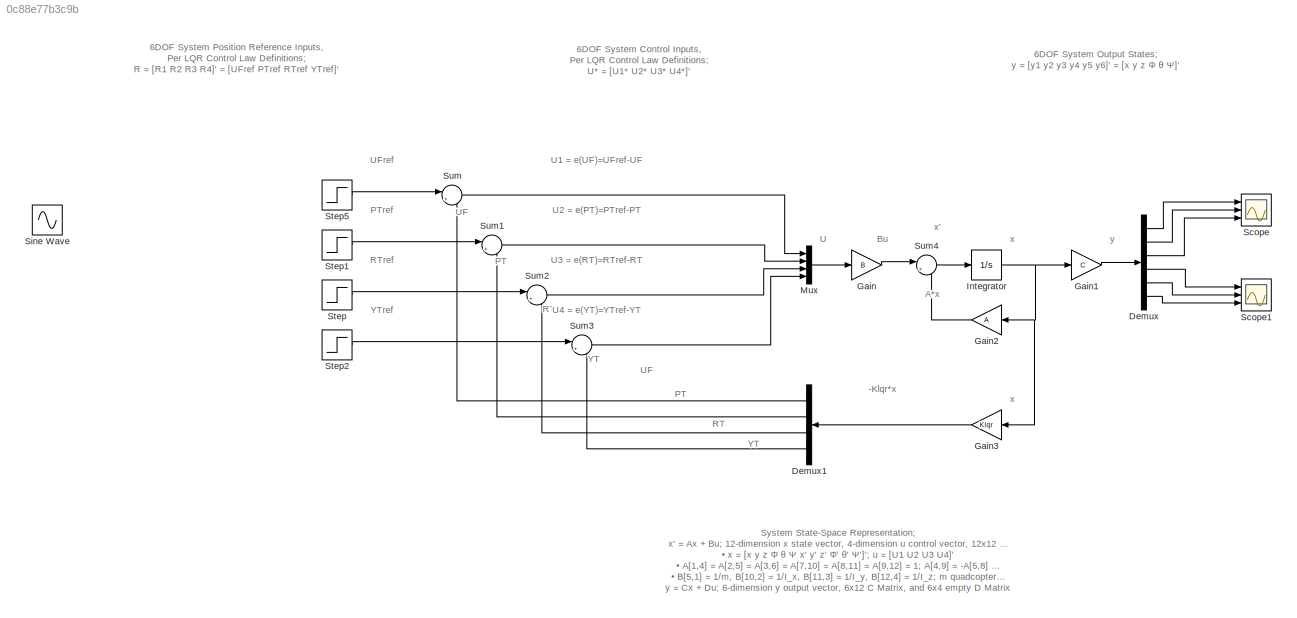
MODEL slx_0c88e77b3c9b
KIND model
CONFIG AbsTol = auto
CONFIG EnableMultiTasking = off
CONFIG FixedStep = auto
CONFIG MaxStep = auto
CONFIG MinStep = auto
CONFIG RelTol = 1e-3
CONFIG SampleTimeConstraint = Unconstrained
CONFIG SolverName = VariableStepAuto
CONFIG StartTime = 0.0
CONFIG StopTime = 60
BLOCK [Demux] Demux
  Outputs = 6
  Ports = [1, 6]
BLOCK [Demux] Demux1
  Ports = [1, 4]
BLOCK [Gain] Gain
  AttributesFormatString = State-Space B*u
  Gain = B
  Multiplication = Matrix(K*u)
BLOCK [Gain] Gain1
  AttributesFormatString = State-Space C*x
  Gain = C
  Multiplication = Matrix(K*u)
BLOCK [Gain] Gain2
  AttributesFormatString = State-Space A*x
  Gain = A
  Multiplication = Matrix(K*u)
BLOCK [Gain] Gain3
  AttributesFormatString = LQR Feeback Gain
  Gain = Klqr
  Multiplication = Matrix(K*u)
BLOCK [Integrator] Integrator
  AttributesFormatString = Extract Current States
  Ports = [1, 1]
BLOCK [Mux] Mux
  DisplayOption = bar
  Ports = [4, 1]
BLOCK [Scope] Scope
  AttributesFormatString = Quadcopter Position\nOutputs
  Floating = off
  NumInputPorts = 3
  Ports = [3]
  ScopeSpecificationString = Simulink.scopes.TimeScopeBlockCfg('CurrentConfiguration', extmgr.ConfigurationSet(extmgr.Configuration('Core','General UI',true),extmgr.Configuration('Core','Source UI',true),extmgr.Configuration('Sources','WiredSimulink',true),extmgr.Configuration('Visuals','Time Domain',true,'SerializedDisplays',{struct('MinYLimReal','-2.5781','MaxYLimReal','1.44558','YLabelReal','','MinYLimMag','0.00000','MaxYL...<+1523ch>
BLOCK [Scope] Scope1
  AttributesFormatString = Quadcopter Euler Angle\nOutputs
  Floating = off
  NumInputPorts = 3
  Ports = [3]
  ScopeSpecificationString = Simulink.scopes.TimeScopeBlockCfg('CurrentConfiguration', extmgr.ConfigurationSet(extmgr.Configuration('Core','General UI',true),extmgr.Configuration('Core','Source UI',true),extmgr.Configuration('Sources','WiredSimulink',true,'DataLoggingVariableName','ScopeData1'),extmgr.Configuration('Visuals','Time Domain',true,'SerializedDisplays',{struct('MinYLimReal','-0.57403','MaxYLimReal','1.80247','YLab...<+1484ch>
BLOCK [Sin] Sine Wave
  Frequency = 90/2*pi
  Ports = [0, 1]
  SampleTime = 0
BLOCK [Step] Step
  After = 1.5
  SampleTime = 0
  Time = 30
BLOCK [Step] Step1
  After = -2
  SampleTime = 0
  Time = 10
BLOCK [Step] Step2
  After = 1.5
  SampleTime = 0
  Time = 30
BLOCK [Step] Step5
  SampleTime = 0
BLOCK [Sum] Sum
  Inputs = |+-
  Ports = [2, 1]
BLOCK [Sum] Sum1
  Inputs = |+-
  Ports = [2, 1]
BLOCK [Sum] Sum2
  Inputs = |+-
  Ports = [2, 1]
BLOCK [Sum] Sum3
  Inputs = |+-
  Ports = [2, 1]
BLOCK [Sum] Sum4
  Inputs = |++
  Ports = [2, 1]
ANNOTATION (root): 6DOF System Control Inputs, Per LQR Control Law Definitions; U * = [ U 1 * U 2 * U 3 * U 4 * ]'
ANNOTATION (root): 6DOF System Output States; y = [y 1 y 2 y 3 y 4 y 5 y 6 ]' = [ x y z Φ θ Ψ ]'
ANNOTATION (root): 6DOF System Position Reference Inputs, Per LQR Control Law Definitions; R = [R 1 R 2 R 3 R 4 ]' = [ UF ref PT ref RT ref YT ref ]'
ANNOTATION (root): System State-Space Representation; x' = Ax + Bu; 12-dimension x state vector, 4-dimension u control vector, 12x12 A Matrix, and 12x4 B Matrix • x = [ x y z Φ θ Ψ x' y' z' Φ' θ' Ψ' ]'; u = [ U 1 U 2 U 3 U 4 ]' • A[1,4] = A[2,5] = A[3,6] = A[7,10] = A[8,11] = A[9,12] = 1; A[4,9] = -A[5,8] = g (earth gravity acceleration constant.) • B[5,1] = 1/m, B[10,2] = 1/I_x, B[11,3] = 1/I_y, B[12,4] = 1/I_z; m ...<+288ch>
ANNOTATION (root): - K lqr *x
ANNOTATION (root): A*x
ANNOTATION (root): Bu
ANNOTATION (root): PT
ANNOTATION (root): PT ref
ANNOTATION (root): RT
ANNOTATION (root): RT ref
ANNOTATION (root): U
ANNOTATION (root): U 3 = e(RT)=RT ref -RT
ANNOTATION (root): U 1 = e(UF)=UF ref -UF
ANNOTATION (root): U 2 = e(PT)=PT ref -PT
ANNOTATION (root): U 4 = e(YT)=YT ref -YT
ANNOTATION (root): UF
ANNOTATION (root): UF ref
ANNOTATION (root): YT
ANNOTATION (root): YT ref
ANNOTATION (root): x'
ANNOTATION (root): x
ANNOTATION (root): y
LINE Demux1:1 -> Sum:2
LINE Demux1:2 -> Sum1:2
LINE Demux1:3 -> Sum2:2
LINE Demux1:4 -> Sum3:2
LINE Demux:1 -> Scope:1
LINE Demux:2 -> Scope:2
LINE Demux:3 -> Scope:3
LINE Demux:4 -> Scope1:1
LINE Demux:5 -> Scope1:2
LINE Demux:6 -> Scope1:3
LINE Gain1:1 -> Demux:1
LINE Gain2:1 -> Sum4:2
LINE Gain3:1 -> Demux1:1
LINE Gain:1 -> Sum4:1
NET Integrator:1 -> Gain1:1, Gain2:1, Gain3:1
LINE Mux:1 -> Gain:1
LINE Step1:1 -> Sum1:1
LINE Step2:1 -> Sum3:1
LINE Step5:1 -> Sum:1
LINE Step:1 -> Sum2:1
LINE Sum1:1 -> Mux:2
LINE Sum2:1 -> Mux:3
LINE Sum3:1 -> Mux:4
LINE Sum4:1 -> Integrator:1
LINE Sum:1 -> Mux:1
note: NET lines group one-source signal fan-out (src -> all destinations, sorted); 1:1 wires keep LINE
